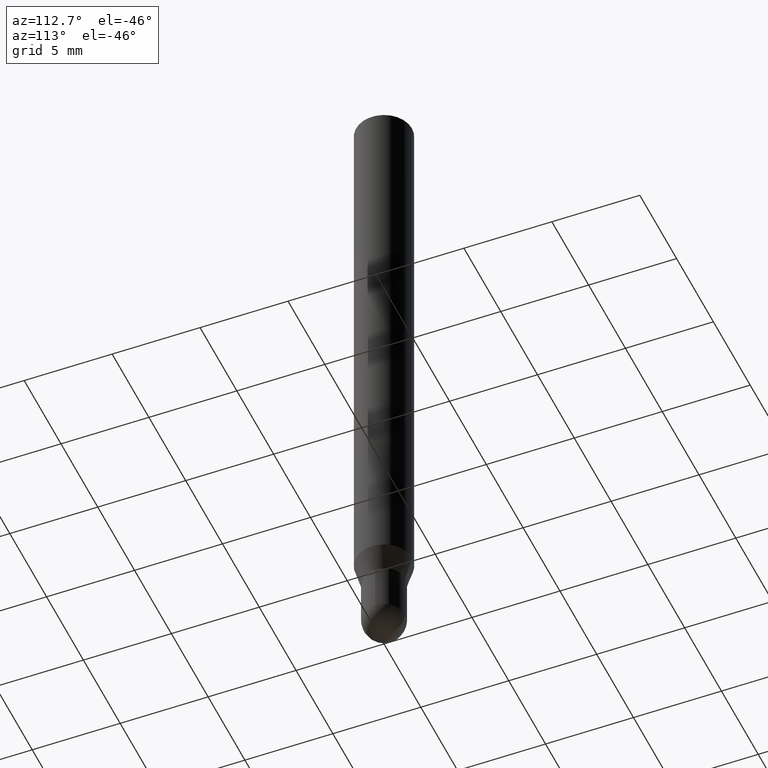
[diagram: clean part render]
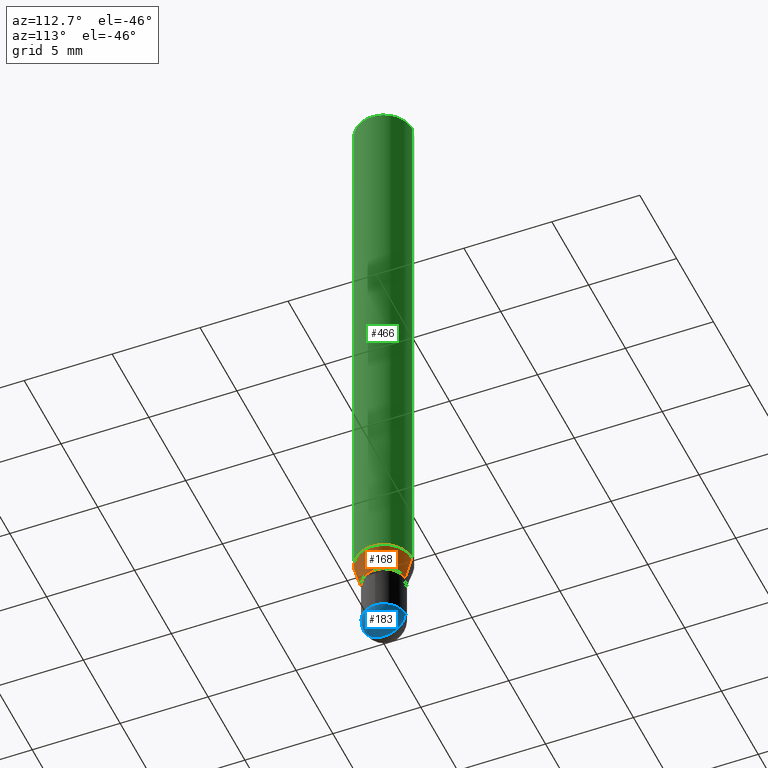
[diagram: same view with three faces highlighted in distinct colors, each labeled with its STEP entity id]
A machine part, auxiliary view with three faces highlighted in distinct colors.
Their STEP definitions:

[orange] entity #168 — the highlighted conical surface has half-angle 15 deg.
#7 = VERTEX_POINT ( 'NONE', #52 ) ;
#10 = ORIENTED_EDGE ( 'NONE', *, *, #211, .F. ) ;
#20 = CARTESIAN_POINT ( 'NONE',  ( 3.295228211741083750E-29, -4.704829825002706980E-15, -1.347500000000000142 ) ) ;
#26 = DIRECTION ( 'NONE',  ( 1.839019923739606626E-15, 0.2588190451025258465, 0.9659258262890669799 ) ) ;
#51 = VERTEX_POINT ( 'NONE', #285 ) ;
#52 = CARTESIAN_POINT ( 'NONE',  ( 3.907985046680881378E-16, 0.04749999999999549027, -1.347500000000000364 ) ) ;
#66 = CARTESIAN_POINT ( 'NONE',  ( 4.440892098500943678E-16, 0.06249999999999552441, -1.291519237886468163 ) ) ;
#72 = LINE ( 'NONE', #379, #493 ) ;
#78 = ORIENTED_EDGE ( 'NONE', *, *, #266, .T. ) ;
#110 = AXIS2_PLACEMENT_3D ( 'NONE', #20, #445, #334 ) ;
#111 = DIRECTION ( 'NONE',  ( -2.445438376060173173E-29, 3.491524916514068118E-15, 1.000000000000000000 ) ) ;
#150 = CARTESIAN_POINT ( 'NONE',  ( 3.295228211741083750E-29, -4.704829825002706980E-15, -1.347500000000000142 ) ) ;
#152 = DIRECTION ( 'NONE',  ( -1.807323732225336450E-15, -0.2588190451025190741, 0.9659258262890687563 ) ) ;
#168 = ADVANCED_FACE ( 'NONE', ( #492 ), #384, .T. ) ;
#171 = AXIS2_PLACEMENT_3D ( 'NONE', #150, #301, #341 ) ;
#189 = CARTESIAN_POINT ( 'NONE',  ( -4.364351673553598192E-16, -0.06250000000000446865, -1.291519237886467719 ) ) ;
#204 = EDGE_CURVE ( 'NONE', #7, #292, #72, .T. ) ;
#211 = EDGE_CURVE ( 'NONE', #388, #292, #224, .T. ) ;
#224 = CIRCLE ( 'NONE', #332, 0.06250000000000000000 ) ;
#226 = EDGE_LOOP ( 'NONE', ( #78, #239, #10, #290 ) ) ;
#239 = ORIENTED_EDGE ( 'NONE', *, *, #204, .T. ) ;
#266 = EDGE_CURVE ( 'NONE', #51, #7, #284, .T. ) ;
#271 = DIRECTION ( 'NONE',  ( -6.982962677686265922E-15, -1.000000000000000000, 4.370956789862821150E-15 ) ) ;
#284 = CIRCLE ( 'NONE', #110, 0.04750000000000019484 ) ;
#285 = CARTESIAN_POINT ( 'NONE',  ( -3.316907271900660552E-16, -0.04750000000000489941, -1.347499999999999698 ) ) ;
#290 = ORIENTED_EDGE ( 'NONE', *, *, #479, .F. ) ;
#292 = VERTEX_POINT ( 'NONE', #66 ) ;
#301 = DIRECTION ( 'NONE',  ( -2.445438376060173173E-29, 3.491524916514068118E-15, 1.000000000000000000 ) ) ;
#332 = AXIS2_PLACEMENT_3D ( 'NONE', #462, #111, #271 ) ;
#334 = DIRECTION ( 'NONE',  ( -6.982962677686265922E-15, -1.000000000000000000, 5.751258934030004495E-15 ) ) ;
#341 = DIRECTION ( 'NONE',  ( -6.982962677686265922E-15, -1.000000000000000000, 5.751258934030004495E-15 ) ) ;
#342 = LINE ( 'NONE', #497, #487 ) ;
#379 = CARTESIAN_POINT ( 'NONE',  ( 3.375077994860818584E-16, 0.04749999999999549027, -1.347500000000000364 ) ) ;
#384 = CONICAL_SURFACE ( 'NONE', #171, 0.04750000000000019484, 0.2617993877991511842 ) ;
#388 = VERTEX_POINT ( 'NONE', #189 ) ;
#445 = DIRECTION ( 'NONE',  ( -2.445438376060173173E-29, 3.491524916514068118E-15, 1.000000000000000000 ) ) ;
#462 = CARTESIAN_POINT ( 'NONE',  ( 3.158330707747556707E-29, -4.509371599237863193E-15, -1.291519237886467941 ) ) ;
#479 = EDGE_CURVE ( 'NONE', #51, #388, #342, .T. ) ;
#487 = VECTOR ( 'NONE', #152, 39.37007874015748143 ) ;
#492 = FACE_OUTER_BOUND ( 'NONE', #226, .T. ) ;
#493 = VECTOR ( 'NONE', #26, 39.37007874015748143 ) ;
#497 = CARTESIAN_POINT ( 'NONE',  ( -3.316907271900660552E-16, -0.04750000000000489941, -1.347499999999999698 ) ) ;

[blue] entity #183 — the highlighted spherical surface has radius 1.2065 mm.
#18 = CARTESIAN_POINT ( 'NONE',  ( 3.662110149467302102E-29, -5.245947616708644728E-15, -1.500000000000000222 ) ) ;
#30 = AXIS2_PLACEMENT_3D ( 'NONE', #198, #386, #424 ) ;
#46 = ORIENTED_EDGE ( 'NONE', *, *, #489, .F. ) ;
#65 = CIRCLE ( 'NONE', #221, 0.04750000000000000749 ) ;
#73 = DIRECTION ( 'NONE',  ( 1.000000000000000000, -6.982962677686265922E-15, 4.883557194083112340E-29 ) ) ;
#106 = DIRECTION ( 'NONE',  ( -2.445468806185136597E-29, 3.491481338843145583E-15, 1.000000000000000000 ) ) ;
#116 = SPHERICAL_SURFACE ( 'NONE', #508, 0.04749999999999998668 ) ;
#136 = ORIENTED_EDGE ( 'NONE', *, *, #355, .F. ) ;
#148 = CARTESIAN_POINT ( 'NONE',  ( 0.04750000000000000749, -5.237222008264718177E-15, -1.452500000000000346 ) ) ;
#165 = VERTEX_POINT ( 'NONE', #372 ) ;
#183 = ADVANCED_FACE ( 'NONE', ( #194 ), #116, .T. ) ;
#193 = CIRCLE ( 'NONE', #30, 0.04749999999999998668 ) ;
#194 = FACE_OUTER_BOUND ( 'NONE', #440, .T. ) ;
#198 = CARTESIAN_POINT ( 'NONE',  ( 3.547981401110308940E-29, -5.077193716965619798E-15, -1.452500000000000124 ) ) ;
#207 = VERTEX_POINT ( 'NONE', #310 ) ;
#221 = AXIS2_PLACEMENT_3D ( 'NONE', #335, #106, #257 ) ;
#233 = DIRECTION ( 'NONE',  ( -6.982962677686265922E-15, -1.000000000000000000, 5.751258934030028949E-15 ) ) ;
#235 = CARTESIAN_POINT ( 'NONE',  ( 3.547981401110308940E-29, -5.077193716965619798E-15, -1.452500000000000124 ) ) ;
#257 = DIRECTION ( 'NONE',  ( 1.000000000000000000, -6.982962677686260400E-15, 0.000000000000000000 ) ) ;
#258 = EDGE_CURVE ( 'NONE', #315, #165, #65, .T. ) ;
#269 = CIRCLE ( 'NONE', #299, 0.04750000000000000749 ) ;
#270 = DIRECTION ( 'NONE',  ( -2.445468806185136597E-29, 3.491481338843145583E-15, 1.000000000000000000 ) ) ;
#287 = VERTEX_POINT ( 'NONE', #18 ) ;
#299 = AXIS2_PLACEMENT_3D ( 'NONE', #459, #270, #419 ) ;
#310 = CARTESIAN_POINT ( 'NONE',  ( -3.316907271900621108E-16, -0.04750000000000507983, -1.452500000000000124 ) ) ;
#315 = VERTEX_POINT ( 'NONE', #148 ) ;
#335 = CARTESIAN_POINT ( 'NONE',  ( 3.552043440983912297E-29, -5.071376644669670605E-15, -1.452500000000000346 ) ) ;
#344 = CIRCLE ( 'NONE', #422, 0.04749999999999998668 ) ;
#347 = CARTESIAN_POINT ( 'NONE',  ( 3.547981401110308940E-29, -5.077193716965619798E-15, -1.452500000000000124 ) ) ;
#355 = EDGE_CURVE ( 'NONE', #287, #207, #344, .T. ) ;
#362 = EDGE_CURVE ( 'NONE', #287, #165, #193, .T. ) ;
#372 = CARTESIAN_POINT ( 'NONE',  ( 3.375077994860830417E-16, 0.04749999999999491435, -1.452500000000000790 ) ) ;
#386 = DIRECTION ( 'NONE',  ( 1.000000000000000000, -7.105427357601001070E-15, 4.926315508542082329E-29 ) ) ;
#393 = DIRECTION ( 'NONE',  ( -6.982962677686265133E-15, -1.000000000000000000, 0.000000000000000000 ) ) ;
#419 = DIRECTION ( 'NONE',  ( 1.000000000000000000, -6.982962677686260400E-15, 0.000000000000000000 ) ) ;
#420 = ORIENTED_EDGE ( 'NONE', *, *, #362, .T. ) ;
#422 = AXIS2_PLACEMENT_3D ( 'NONE', #235, #507, #393 ) ;
#424 = DIRECTION ( 'NONE',  ( 7.105427357601001070E-15, 1.000000000000000000, 0.000000000000000000 ) ) ;
#440 = EDGE_LOOP ( 'NONE', ( #136, #420, #467, #46 ) ) ;
#459 = CARTESIAN_POINT ( 'NONE',  ( 3.552043440983912297E-29, -5.071376644669670605E-15, -1.452500000000000346 ) ) ;
#467 = ORIENTED_EDGE ( 'NONE', *, *, #258, .F. ) ;
#489 = EDGE_CURVE ( 'NONE', #207, #315, #269, .T. ) ;
#507 = DIRECTION ( 'NONE',  ( -1.000000000000000000, 6.982962677686265922E-15, -4.883557194083112340E-29 ) ) ;
#508 = AXIS2_PLACEMENT_3D ( 'NONE', #347, #73, #233 ) ;

[green] entity #466 — the highlighted cylindrical surface (edge-blend (fillet) strip) has radius 1.5875 mm, axis along (-0, 0, 1).
#5 = ORIENTED_EDGE ( 'NONE', *, *, #211, .T. ) ;
#14 = DIRECTION ( 'NONE',  ( -2.445438376060173173E-29, 3.491524916514068512E-15, 1.000000000000000000 ) ) ;
#27 = FACE_OUTER_BOUND ( 'NONE', #249, .T. ) ;
#59 = EDGE_CURVE ( 'NONE', #272, #197, #494, .T. ) ;
#66 = CARTESIAN_POINT ( 'NONE',  ( 4.440892098500943678E-16, 0.06249999999999552441, -1.291519237886468163 ) ) ;
#75 = CYLINDRICAL_SURFACE ( 'NONE', #415, 0.06250000000000000000 ) ;
#111 = DIRECTION ( 'NONE',  ( -2.445438376060173173E-29, 3.491524916514068118E-15, 1.000000000000000000 ) ) ;
#120 = CARTESIAN_POINT ( 'NONE',  ( 0.000000000000000000, 0.000000000000000000, 0.000000000000000000 ) ) ;
#141 = CARTESIAN_POINT ( 'NONE',  ( 3.668157564090276033E-31, -5.237287374771125695E-17, -0.01500000000000006710 ) ) ;
#143 = DIRECTION ( 'NONE',  ( -6.982962677686265922E-15, -1.000000000000000000, 3.483106191921935554E-15 ) ) ;
#153 = DIRECTION ( 'NONE',  ( -6.982962677686265922E-15, -1.000000000000000000, 3.491524916514067723E-15 ) ) ;
#159 = CARTESIAN_POINT ( 'NONE',  ( 4.440892098500943678E-16, 0.06249999999999995837, -0.01500000000000028394 ) ) ;
#186 = CARTESIAN_POINT ( 'NONE',  ( -4.364351673553916201E-16, -0.06250000000000000000, 2.182203072821292327E-16 ) ) ;
#189 = CARTESIAN_POINT ( 'NONE',  ( -4.364351673553598192E-16, -0.06250000000000446865, -1.291519237886467719 ) ) ;
#195 = ORIENTED_EDGE ( 'NONE', *, *, #59, .F. ) ;
#197 = VERTEX_POINT ( 'NONE', #159 ) ;
#211 = EDGE_CURVE ( 'NONE', #388, #292, #224, .T. ) ;
#224 = CIRCLE ( 'NONE', #332, 0.06250000000000000000 ) ;
#241 = ORIENTED_EDGE ( 'NONE', *, *, #296, .F. ) ;
#249 = EDGE_LOOP ( 'NONE', ( #5, #476, #195, #241 ) ) ;
#271 = DIRECTION ( 'NONE',  ( -6.982962677686265922E-15, -1.000000000000000000, 4.370956789862821150E-15 ) ) ;
#272 = VERTEX_POINT ( 'NONE', #451 ) ;
#292 = VERTEX_POINT ( 'NONE', #66 ) ;
#296 = EDGE_CURVE ( 'NONE', #388, #272, #297, .T. ) ;
#297 = LINE ( 'NONE', #186, #391 ) ;
#311 = EDGE_CURVE ( 'NONE', #292, #197, #403, .T. ) ;
#331 = AXIS2_PLACEMENT_3D ( 'NONE', #141, #412, #143 ) ;
#332 = AXIS2_PLACEMENT_3D ( 'NONE', #462, #111, #271 ) ;
#388 = VERTEX_POINT ( 'NONE', #189 ) ;
#391 = VECTOR ( 'NONE', #14, 39.37007874015748143 ) ;
#403 = LINE ( 'NONE', #491, #433 ) ;
#412 = DIRECTION ( 'NONE',  ( -2.445438376060173173E-29, 3.491524916514068118E-15, 1.000000000000000000 ) ) ;
#415 = AXIS2_PLACEMENT_3D ( 'NONE', #120, #456, #153 ) ;
#433 = VECTOR ( 'NONE', #486, 39.37007874015748143 ) ;
#451 = CARTESIAN_POINT ( 'NONE',  ( -4.364351673553912750E-16, -0.06250000000000005551, -0.01499999999999984852 ) ) ;
#456 = DIRECTION ( 'NONE',  ( -2.445438376060173173E-29, 3.491524916514068118E-15, 1.000000000000000000 ) ) ;
#462 = CARTESIAN_POINT ( 'NONE',  ( 3.158330707747556707E-29, -4.509371599237863193E-15, -1.291519237886467941 ) ) ;
#466 = ADVANCED_FACE ( 'NONE', ( #27 ), #75, .T. ) ;
#476 = ORIENTED_EDGE ( 'NONE', *, *, #311, .T. ) ;
#486 = DIRECTION ( 'NONE',  ( -2.445438376060173173E-29, 3.491524916514068512E-15, 1.000000000000000000 ) ) ;
#491 = CARTESIAN_POINT ( 'NONE',  ( 4.440892098500625669E-16, 0.06250000000000000000, -2.182203072821292327E-16 ) ) ;
#494 = CIRCLE ( 'NONE', #331, 0.06250000000000000000 ) ;